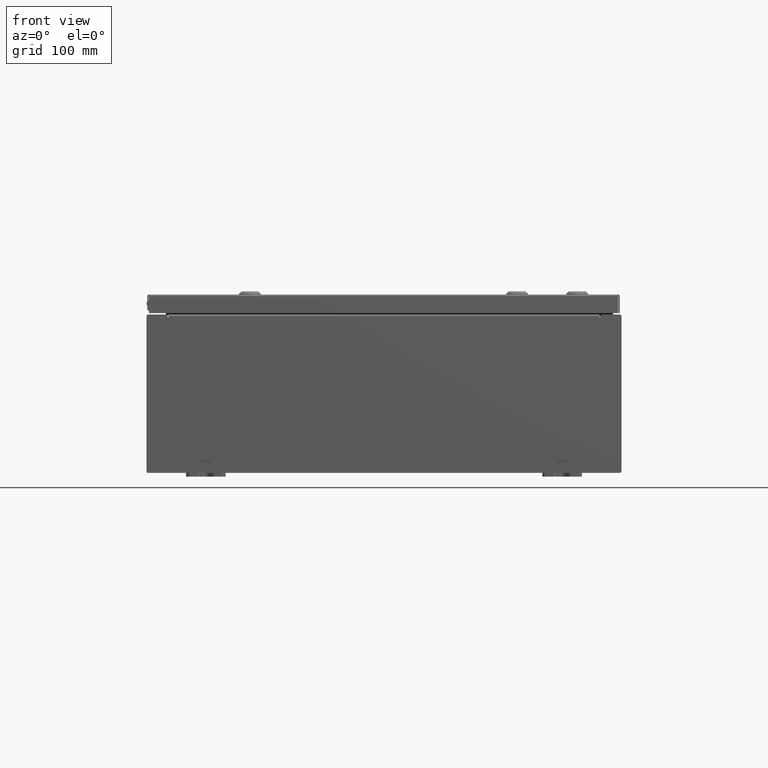
[diagram: clean part render]
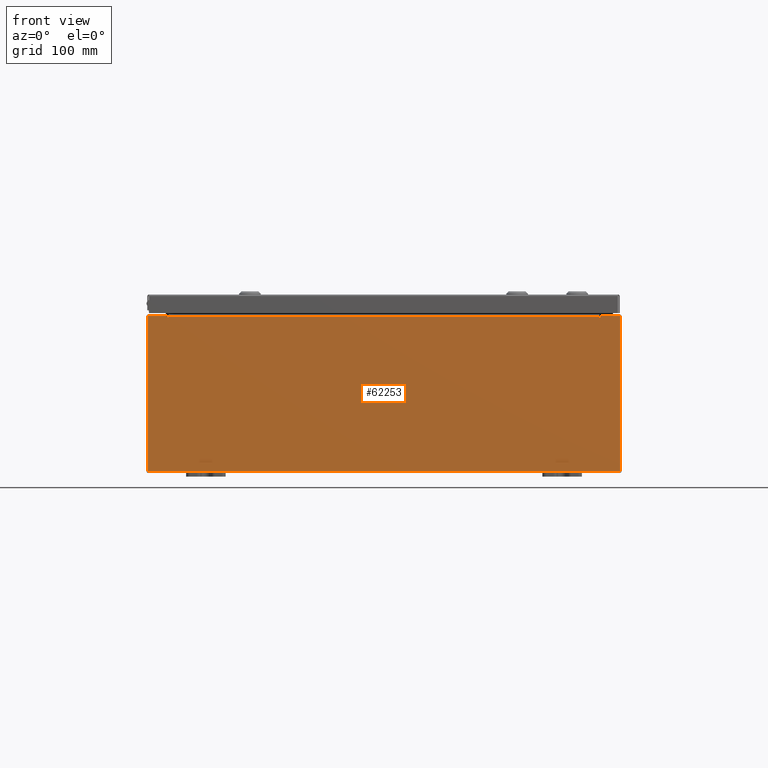
[diagram: same view with one face highlighted and labeled with its STEP entity id]
A machine part, front view. The second image highlights one B-rep face of the part: STEP entity #62253.
In plain terms, the highlighted planar face has unit normal (-0, 1, -0).
Its self-contained STEP definition (entity closure, byte-faithful):
#588 = PLANE ( 'NONE',  #60679 ) ;
#666 = DIRECTION ( 'NONE',  ( 1.000000000000000000, 0.0000000000000000000, 0.0000000000000000000 ) ) ;
#902 = EDGE_CURVE ( 'NONE', #16246, #37217, #54827, .T. ) ;
#1594 = ORIENTED_EDGE ( 'NONE', *, *, #31399, .F. ) ;
#2006 = LINE ( 'NONE', #14316, #36571 ) ;
#2215 = CARTESIAN_POINT ( 'NONE',  ( -11.92530000000000000, 0.0000000000000000000, 3.925299999999999600 ) ) ;
#2453 = DIRECTION ( 'NONE',  ( 0.0000000000000000000, 0.0000000000000000000, -1.000000000000000000 ) ) ;
#2501 = CARTESIAN_POINT ( 'NONE',  ( 10.88720000000000200, 0.0000000000000000000, 3.874949999999999700 ) ) ;
#3617 = DIRECTION ( 'NONE',  ( 0.0000000000000000000, 0.0000000000000000000, 1.000000000000000000 ) ) ;
#5454 = ORIENTED_EDGE ( 'NONE', *, *, #60653, .F. ) ;
#5532 = DIRECTION ( 'NONE',  ( 0.0000000000000000000, -1.000000000000000000, 0.0000000000000000000 ) ) ;
#5806 = LINE ( 'NONE', #2215, #58001 ) ;
#7789 = VERTEX_POINT ( 'NONE', #40497 ) ;
#7907 = CIRCLE ( 'NONE', #37248, 0.01867499999999949400 ) ;
#8416 = ORIENTED_EDGE ( 'NONE', *, *, #902, .F. ) ;
#8742 = DIRECTION ( 'NONE',  ( 1.000000000000000000, 0.0000000000000000000, 0.0000000000000000000 ) ) ;
#10889 = FACE_OUTER_BOUND ( 'NONE', #11095, .T. ) ;
#11068 = CARTESIAN_POINT ( 'NONE',  ( 10.92455000000000000, 0.0000000000000000000, 3.874949999999999700 ) ) ;
#11095 = EDGE_LOOP ( 'NONE', ( #28321, #1594, #8416, #21573, #31391, #5454, #61389, #43053, #27404, #35228, #41459, #11340 ) ) ;
#11314 = VECTOR ( 'NONE', #37837, 39.37007874015748100 ) ;
#11340 = ORIENTED_EDGE ( 'NONE', *, *, #61882, .T. ) ;
#11695 = LINE ( 'NONE', #57841, #60759 ) ;
#11790 = CARTESIAN_POINT ( 'NONE',  ( -10.92454999999999800, 0.0000000000000000000, 3.925299999999999600 ) ) ;
#12021 = VERTEX_POINT ( 'NONE', #11068 ) ;
#13386 = CARTESIAN_POINT ( 'NONE',  ( -11.92530000000000000, 0.0000000000000000000, 3.925299999999999600 ) ) ;
#14316 = CARTESIAN_POINT ( 'NONE',  ( 11.92530000000000000, 0.0000000000000000000, 3.925299999999999600 ) ) ;
#14885 = CARTESIAN_POINT ( 'NONE',  ( 10.90587500000000200, 0.0000000000000000000, 3.874949999999999700 ) ) ;
#15750 = CARTESIAN_POINT ( 'NONE',  ( -10.88720000000000000, 1.024442997624098700E-016, 3.912299999999999700 ) ) ;
#16246 = VERTEX_POINT ( 'NONE', #15750 ) ;
#16528 = CARTESIAN_POINT ( 'NONE',  ( 10.92455000000000000, 0.0000000000000000000, 3.925299999999999600 ) ) ;
#16538 = EDGE_CURVE ( 'NONE', #61518, #12021, #53608, .T. ) ;
#16827 = DIRECTION ( 'NONE',  ( 1.000000000000000000, 0.0000000000000000000, 0.0000000000000000000 ) ) ;
#18435 = CARTESIAN_POINT ( 'NONE',  ( -11.92530000000000000, 0.0000000000000000000, -3.925299999999999600 ) ) ;
#19157 = CARTESIAN_POINT ( 'NONE',  ( -10.88720000000000000, -0.0000000000000000000, 0.0000000000000000000 ) ) ;
#19848 = DIRECTION ( 'NONE',  ( 0.0000000000000000000, 0.0000000000000000000, -1.000000000000000000 ) ) ;
#20629 = LINE ( 'NONE', #58706, #46674 ) ;
#21573 = ORIENTED_EDGE ( 'NONE', *, *, #31914, .T. ) ;
#25003 = VECTOR ( 'NONE', #3617, 39.37007874015748100 ) ;
#25634 = VECTOR ( 'NONE', #57628, 39.37007874015748100 ) ;
#27404 = ORIENTED_EDGE ( 'NONE', *, *, #36772, .T. ) ;
#27537 = VECTOR ( 'NONE', #32017, 39.37007874015748100 ) ;
#28106 = CARTESIAN_POINT ( 'NONE',  ( 11.92530000000000000, 0.0000000000000000000, -3.925299999999999600 ) ) ;
#28321 = ORIENTED_EDGE ( 'NONE', *, *, #52505, .F. ) ;
#28705 = CARTESIAN_POINT ( 'NONE',  ( 11.92530000000000000, 0.0000000000000000000, 3.925299999999999600 ) ) ;
#28771 = VECTOR ( 'NONE', #38856, 39.37007874015748100 ) ;
#29397 = DIRECTION ( 'NONE',  ( 0.0000000000000000000, 0.0000000000000000000, 1.000000000000000000 ) ) ;
#30009 = CARTESIAN_POINT ( 'NONE',  ( 0.0000000000000000000, 0.0000000000000000000, 0.0000000000000000000 ) ) ;
#30102 = CARTESIAN_POINT ( 'NONE',  ( -10.88720000000000200, 1.024442997624098700E-016, 3.912299999999999700 ) ) ;
#30932 = VERTEX_POINT ( 'NONE', #34997 ) ;
#31391 = ORIENTED_EDGE ( 'NONE', *, *, #58049, .F. ) ;
#31399 = EDGE_CURVE ( 'NONE', #37217, #30932, #36801, .T. ) ;
#31850 = CARTESIAN_POINT ( 'NONE',  ( -10.88720000000000000, -0.0000000000000000000, 3.874949999999999700 ) ) ;
#31865 = DIRECTION ( 'NONE',  ( -0.0000000000000000000, 1.000000000000000000, -0.0000000000000000000 ) ) ;
#31914 = EDGE_CURVE ( 'NONE', #16246, #54515, #61381, .T. ) ;
#32017 = DIRECTION ( 'NONE',  ( -4.340572780400004900E-014, 0.0000000000000000000, -1.000000000000000000 ) ) ;
#33042 = CARTESIAN_POINT ( 'NONE',  ( 10.88720000000000200, 0.0000000000000000000, 0.0000000000000000000 ) ) ;
#34997 = CARTESIAN_POINT ( 'NONE',  ( -10.92454999999999800, 0.0000000000000000000, 3.874949999999999700 ) ) ;
#35228 = ORIENTED_EDGE ( 'NONE', *, *, #60445, .T. ) ;
#36505 = LINE ( 'NONE', #33042, #25003 ) ;
#36571 = VECTOR ( 'NONE', #58115, 39.37007874015748100 ) ;
#36772 = EDGE_CURVE ( 'NONE', #62998, #61821, #2006, .T. ) ;
#36801 = CIRCLE ( 'NONE', #53796, 0.01867499999999949400 ) ;
#37217 = VERTEX_POINT ( 'NONE', #31850 ) ;
#37248 = AXIS2_PLACEMENT_3D ( 'NONE', #14885, #49187, #19848 ) ;
#37837 = DIRECTION ( 'NONE',  ( -0.0000000000000000000, -0.0000000000000000000, 1.000000000000000000 ) ) ;
#38856 = DIRECTION ( 'NONE',  ( 0.0000000000000000000, 0.0000000000000000000, -1.000000000000000000 ) ) ;
#39885 = DIRECTION ( 'NONE',  ( 0.0000000000000000000, -0.0000000000000000000, -1.000000000000000000 ) ) ;
#40497 = CARTESIAN_POINT ( 'NONE',  ( -11.92530000000000000, 0.0000000000000000000, -3.925299999999999600 ) ) ;
#40832 = VERTEX_POINT ( 'NONE', #54115 ) ;
#41459 = ORIENTED_EDGE ( 'NONE', *, *, #55662, .T. ) ;
#43053 = ORIENTED_EDGE ( 'NONE', *, *, #57297, .T. ) ;
#46674 = VECTOR ( 'NONE', #29397, 39.37007874015748100 ) ;
#49187 = DIRECTION ( 'NONE',  ( -0.0000000000000000000, 1.000000000000000000, -0.0000000000000000000 ) ) ;
#50780 = VERTEX_POINT ( 'NONE', #2501 ) ;
#51686 = LINE ( 'NONE', #18435, #25634 ) ;
#52505 = EDGE_CURVE ( 'NONE', #30932, #60106, #20629, .T. ) ;
#53608 = LINE ( 'NONE', #61358, #27537 ) ;
#53796 = AXIS2_PLACEMENT_3D ( 'NONE', #61201, #31865, #2453 ) ;
#54115 = CARTESIAN_POINT ( 'NONE',  ( -11.92530000000000000, 0.0000000000000000000, 3.925299999999999600 ) ) ;
#54515 = VERTEX_POINT ( 'NONE', #62007 ) ;
#54827 = LINE ( 'NONE', #19157, #28771 ) ;
#55662 = EDGE_CURVE ( 'NONE', #7789, #40832, #61930, .T. ) ;
#57297 = EDGE_CURVE ( 'NONE', #61518, #62998, #5806, .T. ) ;
#57628 = DIRECTION ( 'NONE',  ( -1.000000000000000000, -0.0000000000000000000, -0.0000000000000000000 ) ) ;
#57841 = CARTESIAN_POINT ( 'NONE',  ( -11.92530000000000000, 0.0000000000000000000, 3.925299999999999600 ) ) ;
#58001 = VECTOR ( 'NONE', #16827, 39.37007874015748100 ) ;
#58049 = EDGE_CURVE ( 'NONE', #50780, #54515, #36505, .T. ) ;
#58115 = DIRECTION ( 'NONE',  ( 0.0000000000000000000, 0.0000000000000000000, -1.000000000000000000 ) ) ;
#58706 = CARTESIAN_POINT ( 'NONE',  ( -10.92454999999999800, -0.0000000000000000000, 0.0000000000000000000 ) ) ;
#60106 = VERTEX_POINT ( 'NONE', #11790 ) ;
#60445 = EDGE_CURVE ( 'NONE', #61821, #7789, #51686, .T. ) ;
#60653 = EDGE_CURVE ( 'NONE', #12021, #50780, #7907, .T. ) ;
#60679 = AXIS2_PLACEMENT_3D ( 'NONE', #30009, #5532, #39885 ) ;
#60759 = VECTOR ( 'NONE', #8742, 39.37007874015748100 ) ;
#61201 = CARTESIAN_POINT ( 'NONE',  ( -10.90587500000000000, 0.0000000000000000000, 3.874949999999999700 ) ) ;
#61358 = CARTESIAN_POINT ( 'NONE',  ( 10.92454999999983300, -0.0000000000000000000, -4.741880436811814400E-013 ) ) ;
#61381 = LINE ( 'NONE', #30102, #62905 ) ;
#61389 = ORIENTED_EDGE ( 'NONE', *, *, #16538, .F. ) ;
#61518 = VERTEX_POINT ( 'NONE', #16528 ) ;
#61821 = VERTEX_POINT ( 'NONE', #28106 ) ;
#61882 = EDGE_CURVE ( 'NONE', #40832, #60106, #11695, .T. ) ;
#61930 = LINE ( 'NONE', #13386, #11314 ) ;
#62007 = CARTESIAN_POINT ( 'NONE',  ( 10.88720000000000200, 0.0000000000000000000, 3.912299999999999700 ) ) ;
#62253 = ADVANCED_FACE ( 'NONE', ( #10889 ), #588, .F. ) ;
#62905 = VECTOR ( 'NONE', #666, 39.37007874015748100 ) ;
#62998 = VERTEX_POINT ( 'NONE', #28705 ) ;